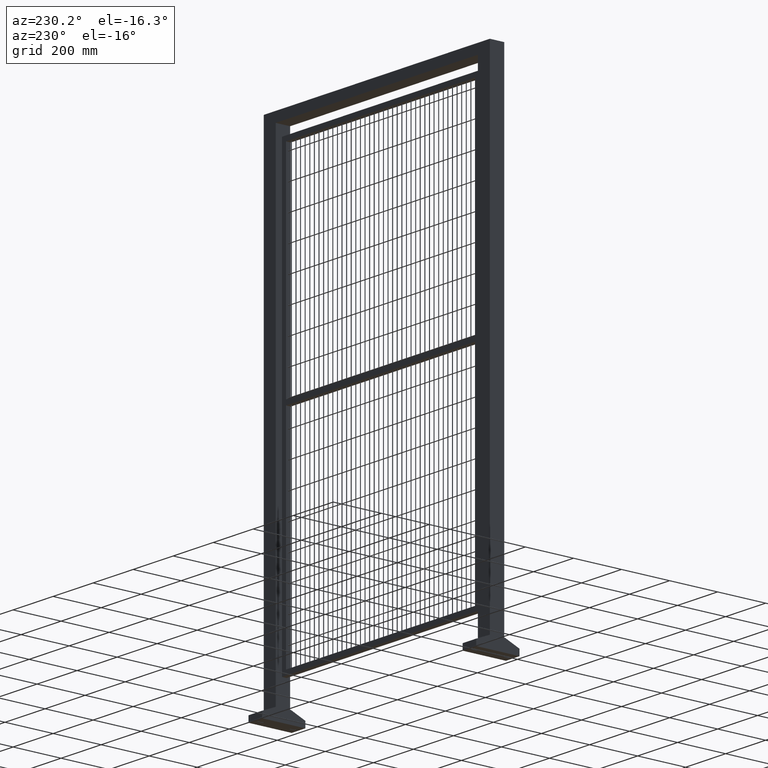
[diagram: clean part render]
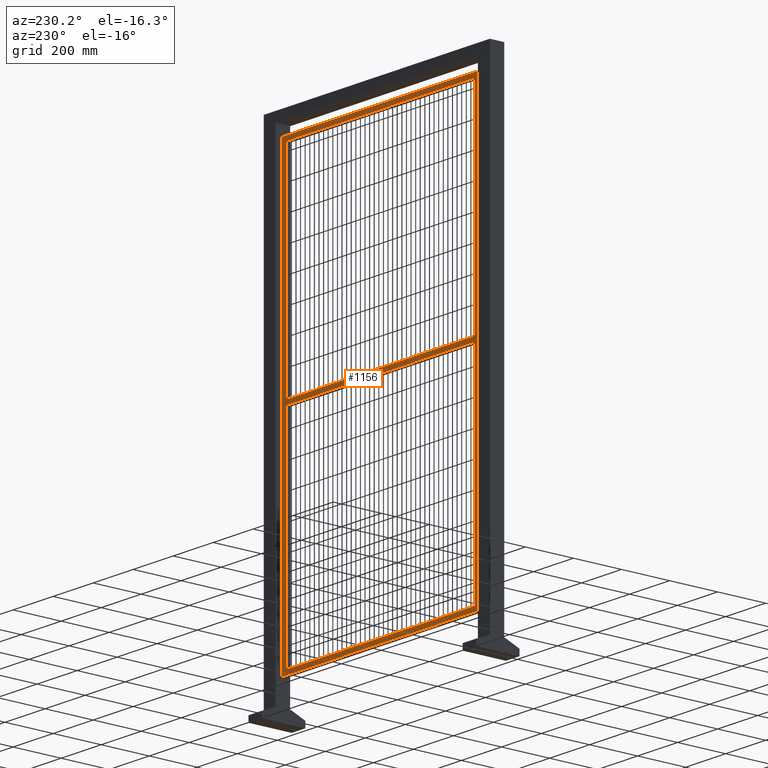
[diagram: same view with one face highlighted and labeled with its STEP entity id]
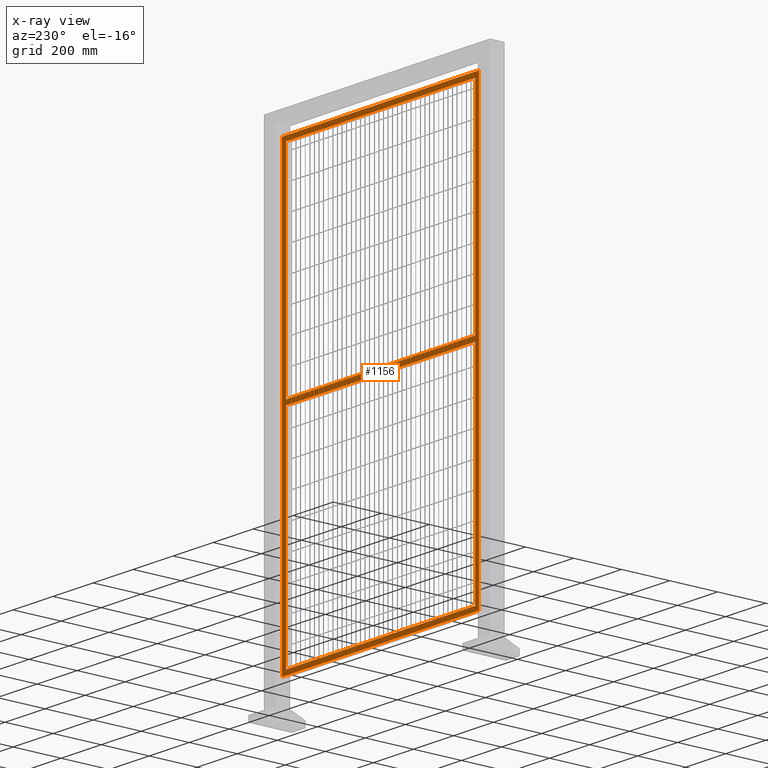
[diagram: x-ray of the same camera — body ghosted, the highlighted face saturated]
A machine part, auxiliary view. The second image highlights one B-rep face of the part: STEP entity #1156.
The next image is the same camera in x-ray: the body ghosted, the highlighted face saturated — about 0% of this face is hidden behind the body in this view.
In plain terms, the highlighted planar face has unit normal (0, -1, 0).
Its self-contained STEP definition (entity closure, byte-faithful):
#76=LINE('',#4031,#170);
#80=LINE('',#4040,#174);
#82=LINE('',#4054,#176);
#85=LINE('',#4062,#179);
#90=LINE('',#4074,#184);
#93=LINE('',#4080,#187);
#94=LINE('',#4082,#188);
#98=LINE('',#4091,#192);
#101=LINE('',#4097,#195);
#104=LINE('',#4103,#198);
#108=LINE('',#4109,#202);
#109=LINE('',#4110,#203);
#170=VECTOR('',#3273,1.);
#174=VECTOR('',#3279,1.);
#176=VECTOR('',#3295,1.);
#179=VECTOR('',#3302,1.);
#184=VECTOR('',#3311,1.);
#187=VECTOR('',#3316,1.);
#188=VECTOR('',#3319,1.);
#192=VECTOR('',#3325,1.);
#195=VECTOR('',#3330,1.);
#198=VECTOR('',#3335,1.);
#202=VECTOR('',#3343,1.);
#203=VECTOR('',#3344,1.);
#841=PLANE('',#2880);
#1156=ADVANCED_FACE('',(#1424,#1425,#1426),#841,.F.);
#1424=FACE_BOUND('',#1597,.T.);
#1425=FACE_BOUND('',#1598,.T.);
#1426=FACE_BOUND('',#1599,.T.);
#1597=EDGE_LOOP('',(#1926,#1927,#1928,#1929));
#1598=EDGE_LOOP('',(#1930,#1931,#1932,#1933));
#1599=EDGE_LOOP('',(#1934,#1935,#1936,#1937));
#1926=ORIENTED_EDGE('',*,*,#2476,.T.);
#1927=ORIENTED_EDGE('',*,*,#2514,.T.);
#1928=ORIENTED_EDGE('',*,*,#2499,.T.);
#1929=ORIENTED_EDGE('',*,*,#2486,.T.);
#1930=ORIENTED_EDGE('',*,*,#2500,.F.);
#1931=ORIENTED_EDGE('',*,*,#2510,.F.);
#1932=ORIENTED_EDGE('',*,*,#2507,.F.);
#1933=ORIENTED_EDGE('',*,*,#2504,.F.);
#1934=ORIENTED_EDGE('',*,*,#2515,.T.);
#1935=ORIENTED_EDGE('',*,*,#2496,.T.);
#1936=ORIENTED_EDGE('',*,*,#2490,.T.);
#1937=ORIENTED_EDGE('',*,*,#2480,.T.);
#2288=VERTEX_POINT('',#4030);
#2289=VERTEX_POINT('',#4032);
#2292=VERTEX_POINT('',#4039);
#2293=VERTEX_POINT('',#4041);
#2298=VERTEX_POINT('',#4055);
#2301=VERTEX_POINT('',#4063);
#2305=VERTEX_POINT('',#4072);
#2307=VERTEX_POINT('',#4078);
#2308=VERTEX_POINT('',#4083);
#2309=VERTEX_POINT('',#4084);
#2312=VERTEX_POINT('',#4092);
#2314=VERTEX_POINT('',#4098);
#2476=EDGE_CURVE('',#2289,#2288,#76,.T.);
#2480=EDGE_CURVE('',#2293,#2292,#80,.T.);
#2486=EDGE_CURVE('',#2298,#2289,#82,.T.);
#2490=EDGE_CURVE('',#2301,#2293,#85,.T.);
#2496=EDGE_CURVE('',#2305,#2301,#90,.T.);
#2499=EDGE_CURVE('',#2307,#2298,#93,.T.);
#2500=EDGE_CURVE('',#2308,#2309,#94,.T.);
#2504=EDGE_CURVE('',#2309,#2312,#98,.T.);
#2507=EDGE_CURVE('',#2312,#2314,#101,.T.);
#2510=EDGE_CURVE('',#2314,#2308,#104,.T.);
#2514=EDGE_CURVE('',#2288,#2307,#108,.T.);
#2515=EDGE_CURVE('',#2292,#2305,#109,.T.);
#2880=AXIS2_PLACEMENT_3D('',#4111,#3345,#3346);
#3273=DIRECTION('',(-6.30808536718839E-17,0.,1.));
#3279=DIRECTION('',(-6.30808536718839E-17,0.,-1.));
#3295=DIRECTION('',(1.,0.,-2.34967835899504E-16));
#3302=DIRECTION('',(-1.,0.,0.));
#3311=DIRECTION('',(-6.30808536718839E-17,0.,1.));
#3316=DIRECTION('',(-6.30808536718839E-17,0.,-1.));
#3319=DIRECTION('',(0.,0.,1.));
#3325=DIRECTION('',(-1.,0.,0.));
#3330=DIRECTION('',(0.,0.,-1.));
#3335=DIRECTION('',(1.,0.,0.));
#3343=DIRECTION('',(-1.,0.,0.));
#3344=DIRECTION('',(1.,0.,0.));
#3345=DIRECTION('',(0.,-1.,0.));
#3346=DIRECTION('',(0.,0.,-1.));
#4030=CARTESIAN_POINT('',(472.5,10.,0.));
#4031=CARTESIAN_POINT('',(472.5,10.,-880.));
#4032=CARTESIAN_POINT('',(472.5,10.,-880.));
#4039=CARTESIAN_POINT('',(-472.5,10.,20.));
#4040=CARTESIAN_POINT('',(-472.5,10.,880.));
#4041=CARTESIAN_POINT('',(-472.5,10.,880.));
#4054=CARTESIAN_POINT('',(-472.5,10.,-880.));
#4055=CARTESIAN_POINT('',(-472.5,10.,-880.));
#4062=CARTESIAN_POINT('',(472.5,10.,880.));
#4063=CARTESIAN_POINT('',(472.5,10.,880.));
#4072=CARTESIAN_POINT('',(472.5,10.,20.));
#4074=CARTESIAN_POINT('',(472.5,10.,-880.));
#4078=CARTESIAN_POINT('',(-472.5,10.,4.38892109655965E-15));
#4080=CARTESIAN_POINT('',(-472.5,10.,880.));
#4082=CARTESIAN_POINT('',(492.5,10.,-900.));
#4083=CARTESIAN_POINT('',(492.5,10.,-900.));
#4084=CARTESIAN_POINT('',(492.5,10.,900.));
#4091=CARTESIAN_POINT('',(492.5,10.,900.));
#4092=CARTESIAN_POINT('',(-492.5,10.,900.));
#4097=CARTESIAN_POINT('',(-492.5,10.,900.));
#4098=CARTESIAN_POINT('',(-492.5,10.,-900.));
#4103=CARTESIAN_POINT('',(-492.5,10.,-900.));
#4109=CARTESIAN_POINT('',(472.5,10.,4.38892109655965E-15));
#4110=CARTESIAN_POINT('',(-472.5,10.,20.));
#4111=CARTESIAN_POINT('',(0.,10.,0.));